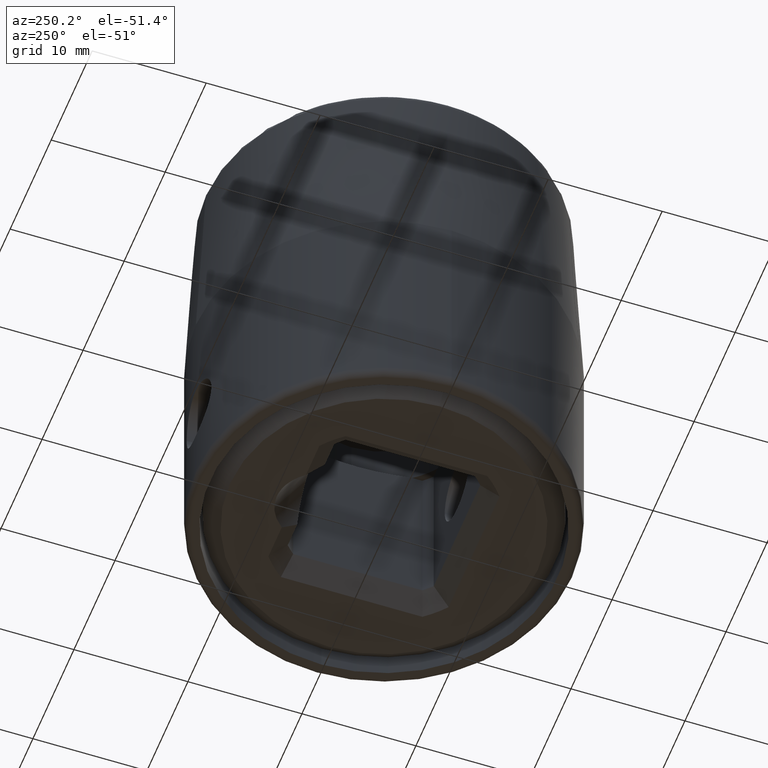
[diagram: clean part render]
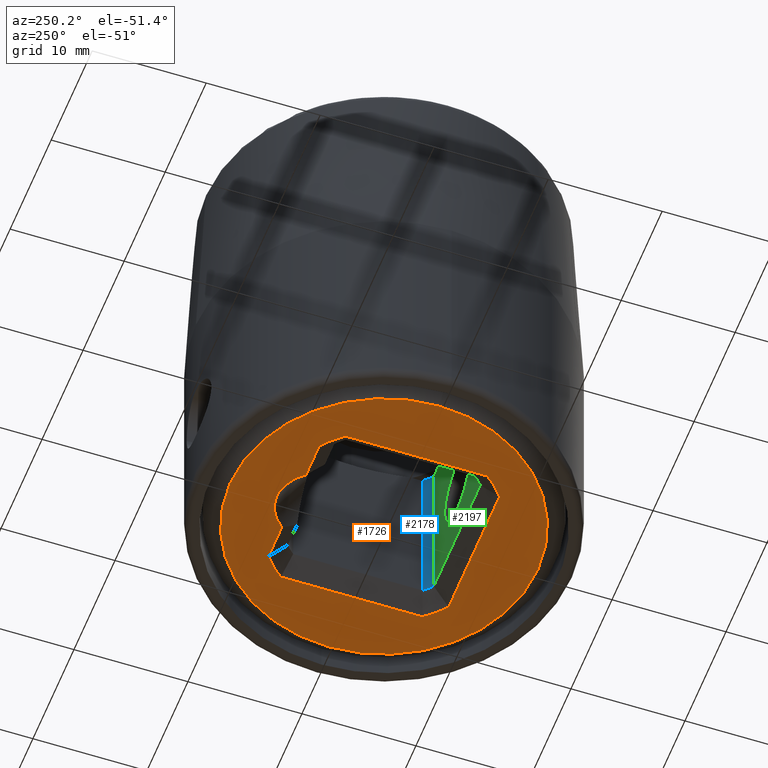
[diagram: same view with three faces highlighted in distinct colors, each labeled with its STEP entity id]
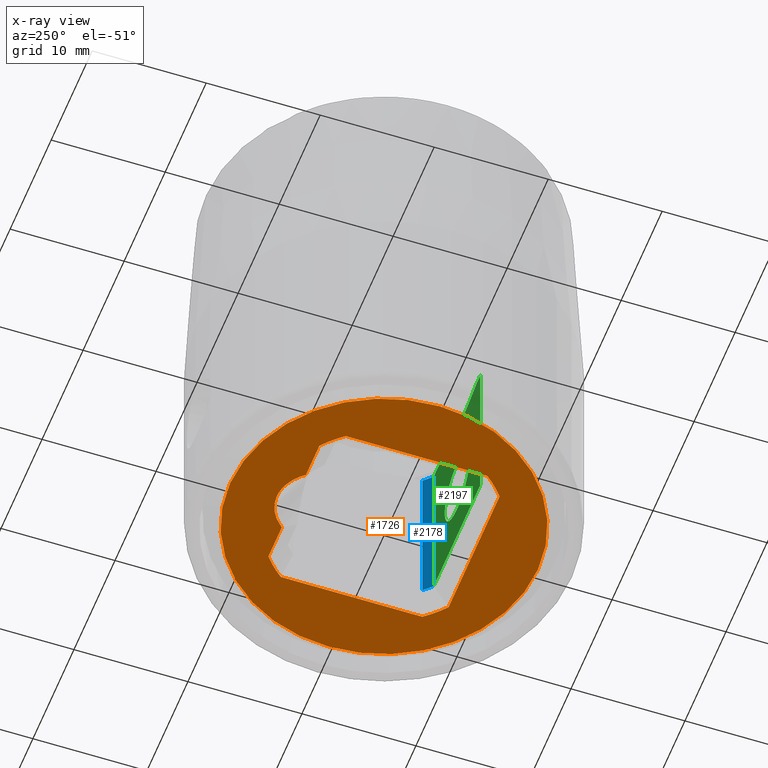
[diagram: x-ray of the same camera — body ghosted, the three highlighted faces saturated]
A machine part, auxiliary view with three faces highlighted in distinct colors.
The next image is the same camera in x-ray (body ghosted, the three faces saturated) — at least one of them is partly hidden behind the body in this view.
Their STEP definitions:

[orange] entity #1726 — the highlighted planar face has unit normal (0, 0, 1).
#535=DIRECTION('',(-1.E0,0.E0,0.E0));
#536=VECTOR('',#535,3.255531948542E0);
#537=CARTESIAN_POINT('',(6.205922574445E0,7.905E0,0.E0));
#538=LINE('',#537,#536);
#539=CARTESIAN_POINT('',(1.385558334732E-13,1.345590305846E-13,0.E0));
#540=DIRECTION('',(0.E0,0.E0,1.E0));
#541=DIRECTION('',(7.865671641791E-1,6.175047337756E-1,0.E0));
#542=AXIS2_PLACEMENT_3D('',#539,#540,#541);
#544=DIRECTION('',(0.E0,1.E0,0.E0));
#545=VECTOR('',#544,1.241184514889E1);
#546=CARTESIAN_POINT('',(7.905E0,-6.205922574445E0,0.E0));
#547=LINE('',#546,#545);
#548=CARTESIAN_POINT('',(1.834088436681E-13,-1.869615573469E-13,0.E0));
#549=DIRECTION('',(0.E0,0.E0,1.E0));
#550=DIRECTION('',(6.175047337756E-1,-7.865671641791E-1,0.E0));
#551=AXIS2_PLACEMENT_3D('',#548,#549,#550);
#553=DIRECTION('',(1.E0,0.E0,0.E0));
#554=VECTOR('',#553,1.241184514889E1);
#555=CARTESIAN_POINT('',(-6.205922574445E0,-7.905E0,0.E0));
#556=LINE('',#555,#554);
#557=CARTESIAN_POINT('',(-2.042810365310E-13,-2.016165012719E-13,0.E0));
#558=DIRECTION('',(0.E0,0.E0,1.E0));
#559=DIRECTION('',(-7.865671641791E-1,-6.175047337756E-1,0.E0));
#560=AXIS2_PLACEMENT_3D('',#557,#558,#559);
#562=DIRECTION('',(0.E0,-1.E0,0.E0));
#563=VECTOR('',#562,1.241184514889E1);
#564=CARTESIAN_POINT('',(-7.905E0,6.205922574445E0,0.E0));
#565=LINE('',#564,#563);
#566=CARTESIAN_POINT('',(-3.113065361049E-13,3.099742684753E-13,0.E0));
#567=DIRECTION('',(0.E0,0.E0,1.E0));
#568=DIRECTION('',(-6.175047337756E-1,7.865671641791E-1,0.E0));
#569=AXIS2_PLACEMENT_3D('',#566,#567,#568);
#571=DIRECTION('',(-1.E0,0.E0,0.E0));
#572=VECTOR('',#571,3.255531948542E0);
#573=CARTESIAN_POINT('',(-2.950390625903E0,7.905E0,0.E0));
#574=LINE('',#573,#572);
#575=CARTESIAN_POINT('',(0.E0,1.653273178849E-14,0.E0));
#576=DIRECTION('',(0.E0,0.E0,-1.E0));
#577=DIRECTION('',(1.E0,0.E0,0.E0));
#578=AXIS2_PLACEMENT_3D('',#575,#576,#577);
#580=CARTESIAN_POINT('',(0.E0,0.E0,0.E0));
#581=DIRECTION('',(0.E0,0.E0,-1.E0));
#582=DIRECTION('',(-1.E0,0.E0,0.E0));
#583=AXIS2_PLACEMENT_3D('',#580,#581,#582);
#604=CARTESIAN_POINT('',(2.950390625902E0,7.905E0,0.E0));
#605=CARTESIAN_POINT('',(2.704524740411E0,8.215119235133E0,0.E0));
#606=CARTESIAN_POINT('',(2.212792969427E0,8.677028477536E0,0.E0));
#607=CARTESIAN_POINT('',(1.229329427459E0,9.255733726900E0,0.E0));
#608=CARTESIAN_POINT('',(0.E0,9.504510848734E0,0.E0));
#609=CARTESIAN_POINT('',(-1.229329427459E0,9.255733726900E0,0.E0));
#610=CARTESIAN_POINT('',(-2.212792969427E0,8.677028477536E0,0.E0));
#611=CARTESIAN_POINT('',(-2.704524740411E0,8.215119235133E0,0.E0));
#612=CARTESIAN_POINT('',(-2.950390625902E0,7.905E0,0.E0));
#1009=CARTESIAN_POINT('',(2.950390625903E0,7.905E0,8.615330671091E-14));
#1017=CARTESIAN_POINT('',(-2.950390625903E0,7.905E0,8.615330671091E-14));
#1049=CARTESIAN_POINT('',(7.905E0,6.205922574445E0,0.E0));
#1050=CARTESIAN_POINT('',(6.205922574445E0,7.905E0,0.E0));
#1051=VERTEX_POINT('',#1049);
#1052=VERTEX_POINT('',#1050);
#1053=CARTESIAN_POINT('',(7.905E0,-6.205922574445E0,0.E0));
#1054=VERTEX_POINT('',#1053);
#1057=CARTESIAN_POINT('',(6.205922574445E0,-7.905E0,0.E0));
#1058=VERTEX_POINT('',#1057);
#1061=CARTESIAN_POINT('',(-6.205922574445E0,-7.905E0,0.E0));
#1062=VERTEX_POINT('',#1061);
#1065=CARTESIAN_POINT('',(-7.905E0,-6.205922574445E0,0.E0));
#1066=VERTEX_POINT('',#1065);
#1069=CARTESIAN_POINT('',(-7.905E0,6.205922574445E0,0.E0));
#1070=VERTEX_POINT('',#1069);
#1073=CARTESIAN_POINT('',(-6.205922574445E0,7.905E0,0.E0));
#1074=VERTEX_POINT('',#1073);
#1077=VERTEX_POINT('',#1009);
#1080=VERTEX_POINT('',#1017);
#1081=CARTESIAN_POINT('',(1.35E1,0.E0,0.E0));
#1082=CARTESIAN_POINT('',(-1.35E1,0.E0,0.E0));
#1083=VERTEX_POINT('',#1081);
#1084=VERTEX_POINT('',#1082);
#1694=CARTESIAN_POINT('',(0.E0,0.E0,0.E0));
#1695=DIRECTION('',(0.E0,0.E0,1.E0));
#1696=DIRECTION('',(1.E0,0.E0,0.E0));
#1697=AXIS2_PLACEMENT_3D('',#1694,#1695,#1696);
#1698=PLANE('',#1697);
#1700=ORIENTED_EDGE('',*,*,#1699,.F.);
#1701=ORIENTED_EDGE('',*,*,#1684,.F.);
#1702=EDGE_LOOP('',(#1700,#1701));
#1703=FACE_OUTER_BOUND('',#1702,.F.);
#1705=ORIENTED_EDGE('',*,*,#1704,.F.);
#1707=ORIENTED_EDGE('',*,*,#1706,.F.);
#1709=ORIENTED_EDGE('',*,*,#1708,.F.);
#1711=ORIENTED_EDGE('',*,*,#1710,.F.);
#1713=ORIENTED_EDGE('',*,*,#1712,.F.);
#1715=ORIENTED_EDGE('',*,*,#1714,.F.);
#1717=ORIENTED_EDGE('',*,*,#1716,.F.);
#1719=ORIENTED_EDGE('',*,*,#1718,.F.);
#1721=ORIENTED_EDGE('',*,*,#1720,.F.);
#1723=ORIENTED_EDGE('',*,*,#1722,.F.);
#1724=EDGE_LOOP('',(#1705,#1707,#1709,#1711,#1713,#1715,#1717,#1719,#1721,
#1723));
#1725=FACE_BOUND('',#1724,.F.);
#1726=ADVANCED_FACE('',(#1703,#1725),#1698,.F.);
#543=CIRCLE('',#542,1.005E1);
#552=CIRCLE('',#551,1.005E1);
#561=CIRCLE('',#560,1.005E1);
#570=CIRCLE('',#569,1.005E1);
#579=CIRCLE('',#578,1.35E1);
#584=CIRCLE('',#583,1.35E1);
#613=B_SPLINE_CURVE_WITH_KNOTS('',3,(#604,#605,#606,#607,#608,#609,#610,#611,
#612),.UNSPECIFIED.,.F.,.F.,(4,1,1,1,1,1,4),(0.E0,1.25E-1,2.5E-1,5.E-1,7.5E-1,
8.75E-1,1.E0),.UNSPECIFIED.);
#1684=EDGE_CURVE('',#1084,#1083,#584,.T.);
#1699=EDGE_CURVE('',#1083,#1084,#579,.T.);
#1704=EDGE_CURVE('',#1077,#1080,#613,.T.);
#1706=EDGE_CURVE('',#1052,#1077,#538,.T.);
#1708=EDGE_CURVE('',#1051,#1052,#543,.T.);
#1710=EDGE_CURVE('',#1054,#1051,#547,.T.);
#1712=EDGE_CURVE('',#1058,#1054,#552,.T.);
#1714=EDGE_CURVE('',#1062,#1058,#556,.T.);
#1716=EDGE_CURVE('',#1066,#1062,#561,.T.);
#1718=EDGE_CURVE('',#1070,#1066,#565,.T.);
#1720=EDGE_CURVE('',#1074,#1070,#570,.T.);
#1722=EDGE_CURVE('',#1080,#1074,#574,.T.);

[blue] entity #2178 — the highlighted cylindrical surface (partial cylindrical patch) has radius 8.55 mm, axis along (0, 0, -1).
#765=CARTESIAN_POINT('',(0.E0,0.E0,1.6E1));
#766=DIRECTION('',(0.E0,0.E0,-1.E0));
#767=DIRECTION('',(7.491228070175E-1,-6.624311435962E-1,0.E0));
#768=AXIS2_PLACEMENT_3D('',#765,#766,#767);
#960=CARTESIAN_POINT('',(0.E0,0.E0,1.5E0));
#961=DIRECTION('',(0.E0,0.E0,1.E0));
#962=DIRECTION('',(6.624311435962E-1,-7.491228070175E-1,0.E0));
#963=AXIS2_PLACEMENT_3D('',#960,#961,#962);
#965=DIRECTION('',(1.076839766782E-12,-4.336148298665E-13,1.E0));
#966=VECTOR('',#965,1.449999999998E1);
#967=CARTESIAN_POINT('',(6.404999999984E0,-5.663786277741E0,1.500000000016E0));
#968=LINE('',#967,#966);
#996=DIRECTION('',(9.770664518540E-9,-2.427063171244E-8,1.E0));
#997=VECTOR('',#996,1.449999964252E1);
#998=CARTESIAN_POINT('',(5.663786136073E0,-6.404999648076E0,1.500000357484E0));
#999=LINE('',#998,#997);
#1033=CARTESIAN_POINT('',(6.405E0,-5.663786277747E0,1.6E1));
#1034=CARTESIAN_POINT('',(5.663786277747E0,-6.405E0,1.6E1));
#1035=VERTEX_POINT('',#1033);
#1036=VERTEX_POINT('',#1034);
#1055=CARTESIAN_POINT('',(6.404999999984E0,-5.663786277741E0,1.500000000016E0));
#1056=VERTEX_POINT('',#1055);
#1059=CARTESIAN_POINT('',(5.663786277747E0,-6.405E0,1.5E0));
#1060=VERTEX_POINT('',#1059);
#2166=CARTESIAN_POINT('',(0.E0,0.E0,0.E0));
#2167=DIRECTION('',(0.E0,0.E0,-1.E0));
#2168=DIRECTION('',(-1.E0,0.E0,0.E0));
#2169=AXIS2_PLACEMENT_3D('',#2166,#2167,#2168);
#2170=CYLINDRICAL_SURFACE('',#2169,8.55E0);
#2171=ORIENTED_EDGE('',*,*,#2104,.T.);
#2172=ORIENTED_EDGE('',*,*,#2159,.T.);
#2173=ORIENTED_EDGE('',*,*,#1860,.T.);
#2175=ORIENTED_EDGE('',*,*,#2174,.F.);
#2176=EDGE_LOOP('',(#2171,#2172,#2173,#2175));
#2177=FACE_OUTER_BOUND('',#2176,.F.);
#2178=ADVANCED_FACE('',(#2177),#2170,.F.);
#769=CIRCLE('',#768,8.55E0);
#964=CIRCLE('',#963,8.55E0);
#1860=EDGE_CURVE('',#1035,#1036,#769,.T.);
#2104=EDGE_CURVE('',#1060,#1056,#964,.T.);
#2159=EDGE_CURVE('',#1056,#1035,#968,.T.);
#2174=EDGE_CURVE('',#1060,#1036,#999,.T.);

[green] entity #2197 — the highlighted planar face has unit normal (0, -1, 0).
#734=DIRECTION('',(-1.E0,0.E0,0.E0));
#735=VECTOR('',#734,8.704601882768E-1);
#736=CARTESIAN_POINT('',(-4.793326089471E0,-6.405E0,1.6E1));
#737=LINE('',#736,#735);
#761=DIRECTION('',(-1.E0,0.E0,0.E0));
#762=VECTOR('',#761,8.704601882768E-1);
#763=CARTESIAN_POINT('',(5.663786277747E0,-6.405E0,1.6E1));
#764=LINE('',#763,#762);
#969=CARTESIAN_POINT('',(0.E0,-6.405E0,8.E0));
#970=DIRECTION('',(0.E0,1.E0,0.E0));
#971=DIRECTION('',(0.E0,0.E0,-1.E0));
#972=AXIS2_PLACEMENT_3D('',#969,#970,#971);
#974=CARTESIAN_POINT('',(0.E0,-6.405E0,8.E0));
#975=DIRECTION('',(0.E0,1.E0,0.E0));
#976=DIRECTION('',(0.E0,0.E0,1.E0));
#977=AXIS2_PLACEMENT_3D('',#974,#975,#976);
#979=CARTESIAN_POINT('',(-4.793326089471E0,-6.405E0,1.6E1));
#980=CARTESIAN_POINT('',(-4.401531962818E0,-6.405E0,1.591455812359E1));
#981=CARTESIAN_POINT('',(-3.640018459391E0,-6.405E0,1.576220193799E1));
#982=CARTESIAN_POINT('',(-2.587142706554E0,-6.405E0,1.559435684476E1));
#983=CARTESIAN_POINT('',(-1.552884505521E0,-6.405E0,1.547768188834E1));
#984=CARTESIAN_POINT('',(-5.184517105842E-1,-6.405E0,1.541693442174E1));
#985=CARTESIAN_POINT('',(5.205369653730E-1,-6.405E0,1.541699989578E1));
#986=CARTESIAN_POINT('',(1.554808528538E0,-6.405E0,1.547784832601E1));
#987=CARTESIAN_POINT('',(2.588917860217E0,-6.405E0,1.559461726383E1));
#988=CARTESIAN_POINT('',(3.640169977089E0,-6.405E0,1.576224629188E1));
#989=CARTESIAN_POINT('',(4.401536268511E0,-6.405E0,1.591455906257E1));
#990=CARTESIAN_POINT('',(4.793326089471E0,-6.405E0,1.6E1));
#992=DIRECTION('',(1.E0,3.106654497626E-8,3.155735546688E-8));
#993=VECTOR('',#992,1.132757241381E1);
#994=CARTESIAN_POINT('',(-5.663786277741E0,-6.404999999984E0,1.500000000016E0));
#995=LINE('',#994,#993);
#996=DIRECTION('',(9.770664518540E-9,-2.427063171244E-8,1.E0));
#997=VECTOR('',#996,1.449999964252E1);
#998=CARTESIAN_POINT('',(5.663786136073E0,-6.404999648076E0,1.500000357484E0));
#999=LINE('',#998,#997);
#1005=DIRECTION('',(-4.334923224983E-13,-1.076901020467E-12,1.E0));
#1006=VECTOR('',#1005,1.449999999998E1);
#1007=CARTESIAN_POINT('',(-5.663786277741E0,-6.404999999984E0,
1.500000000016E0));
#1008=LINE('',#1007,#1006);
#1034=CARTESIAN_POINT('',(5.663786277747E0,-6.405E0,1.6E1));
#1036=VERTEX_POINT('',#1034);
#1037=CARTESIAN_POINT('',(-5.663786277747E0,-6.405E0,1.6E1));
#1039=VERTEX_POINT('',#1037);
#1059=CARTESIAN_POINT('',(5.663786277747E0,-6.405E0,1.5E0));
#1060=VERTEX_POINT('',#1059);
#1063=CARTESIAN_POINT('',(-5.663786277741E0,-6.404999999984E0,
1.500000000016E0));
#1064=VERTEX_POINT('',#1063);
#1101=CARTESIAN_POINT('',(0.E0,-6.405E0,5.E0));
#1102=CARTESIAN_POINT('',(0.E0,-6.405E0,1.1E1));
#1103=VERTEX_POINT('',#1101);
#1104=VERTEX_POINT('',#1102);
#1170=CARTESIAN_POINT('',(-4.793326089471E0,-6.405E0,1.6E1));
#1172=VERTEX_POINT('',#1170);
#1177=CARTESIAN_POINT('',(4.793326089471E0,-6.405E0,1.6E1));
#1179=VERTEX_POINT('',#1177);
#2179=CARTESIAN_POINT('',(5.663786277747E0,-6.405E0,0.E0));
#2180=DIRECTION('',(0.E0,-1.E0,0.E0));
#2181=DIRECTION('',(-1.E0,0.E0,0.E0));
#2182=AXIS2_PLACEMENT_3D('',#2179,#2180,#2181);
#2183=PLANE('',#2182);
#2184=ORIENTED_EDGE('',*,*,#1858,.T.);
#2185=ORIENTED_EDGE('',*,*,#1994,.F.);
#2186=ORIENTED_EDGE('',*,*,#1831,.T.);
#2188=ORIENTED_EDGE('',*,*,#2187,.F.);
#2189=ORIENTED_EDGE('',*,*,#2090,.T.);
#2190=ORIENTED_EDGE('',*,*,#2174,.T.);
#2191=EDGE_LOOP('',(#2184,#2185,#2186,#2188,#2189,#2190));
#2192=FACE_OUTER_BOUND('',#2191,.F.);
#2193=ORIENTED_EDGE('',*,*,#1620,.T.);
#2194=ORIENTED_EDGE('',*,*,#1774,.T.);
#2195=EDGE_LOOP('',(#2193,#2194));
#2196=FACE_BOUND('',#2195,.F.);
#2197=ADVANCED_FACE('',(#2192,#2196),#2183,.F.);
#973=CIRCLE('',#972,3.E0);
#978=CIRCLE('',#977,3.E0);
#991=B_SPLINE_CURVE_WITH_KNOTS('',3,(#979,#980,#981,#982,#983,#984,#985,#986,
#987,#988,#989,#990),.UNSPECIFIED.,.F.,.F.,(4,1,1,1,1,1,1,1,1,4),(0.E0,
1.111111111111E-1,2.222222222222E-1,3.333333333333E-1,4.444444444444E-1,
5.555555555556E-1,6.666666666667E-1,7.777777777778E-1,8.888888888889E-1,1.E0),
.UNSPECIFIED.);
#1620=EDGE_CURVE('',#1103,#1104,#973,.T.);
#1774=EDGE_CURVE('',#1104,#1103,#978,.T.);
#1831=EDGE_CURVE('',#1172,#1039,#737,.T.);
#1858=EDGE_CURVE('',#1036,#1179,#764,.T.);
#1994=EDGE_CURVE('',#1172,#1179,#991,.T.);
#2090=EDGE_CURVE('',#1064,#1060,#995,.T.);
#2174=EDGE_CURVE('',#1060,#1036,#999,.T.);
#2187=EDGE_CURVE('',#1064,#1039,#1008,.T.);